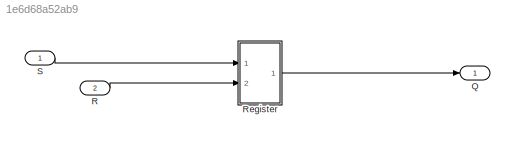
MODEL slx_1e6d68a52ab9
KIND model
BLOCK [Outport] Q
  IconDisplay = Port number
BLOCK [Inport] R
  IconDisplay = Port number
  Port = 2
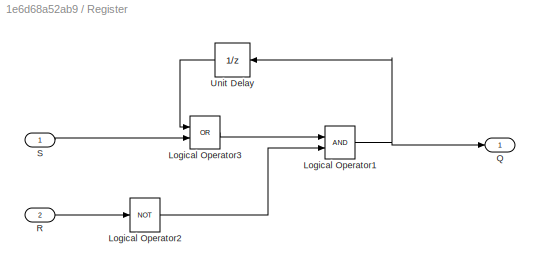
BLOCK [SubSystem] Register
  Ports = [2, 1]
  RequestExecContextInheritance = off
BLOCK [Logic] Register/Logical Operator1
  AllPortsSameDT = off
  OutDataTypeStr = boolean
  Ports = [2, 1]
BLOCK [Logic] Register/Logical Operator2
  AllPortsSameDT = off
  Operator = NOT
  OutDataTypeStr = boolean
  Ports = [1, 1]
BLOCK [Logic] Register/Logical Operator3
  AllPortsSameDT = off
  Operator = OR
  OutDataTypeStr = boolean
  Ports = [2, 1]
BLOCK [Outport] Register/Q
  IconDisplay = Port number
BLOCK [Inport] Register/R
  IconDisplay = Port number
  Port = 2
BLOCK [Inport] Register/S
  IconDisplay = Port number
BLOCK [UnitDelay] Register/Unit Delay
  InputProcessing = Elements as channels (sample based)
  SampleTime = -1
BLOCK [Inport] S
  IconDisplay = Port number
LINE R:1 -> Register:2
NET Register/Logical Operator1:1 -> Register/Q:1, Register/Unit Delay:1
LINE Register/Logical Operator2:1 -> Register/Logical Operator1:2
LINE Register/Logical Operator3:1 -> Register/Logical Operator1:1
LINE Register/R:1 -> Register/Logical Operator2:1
LINE Register/S:1 -> Register/Logical Operator3:2
LINE Register/Unit Delay:1 -> Register/Logical Operator3:1
LINE Register:1 -> Q:1
LINE S:1 -> Register:1
note: NET lines group one-source signal fan-out (src -> all destinations, sorted); 1:1 wires keep LINE
